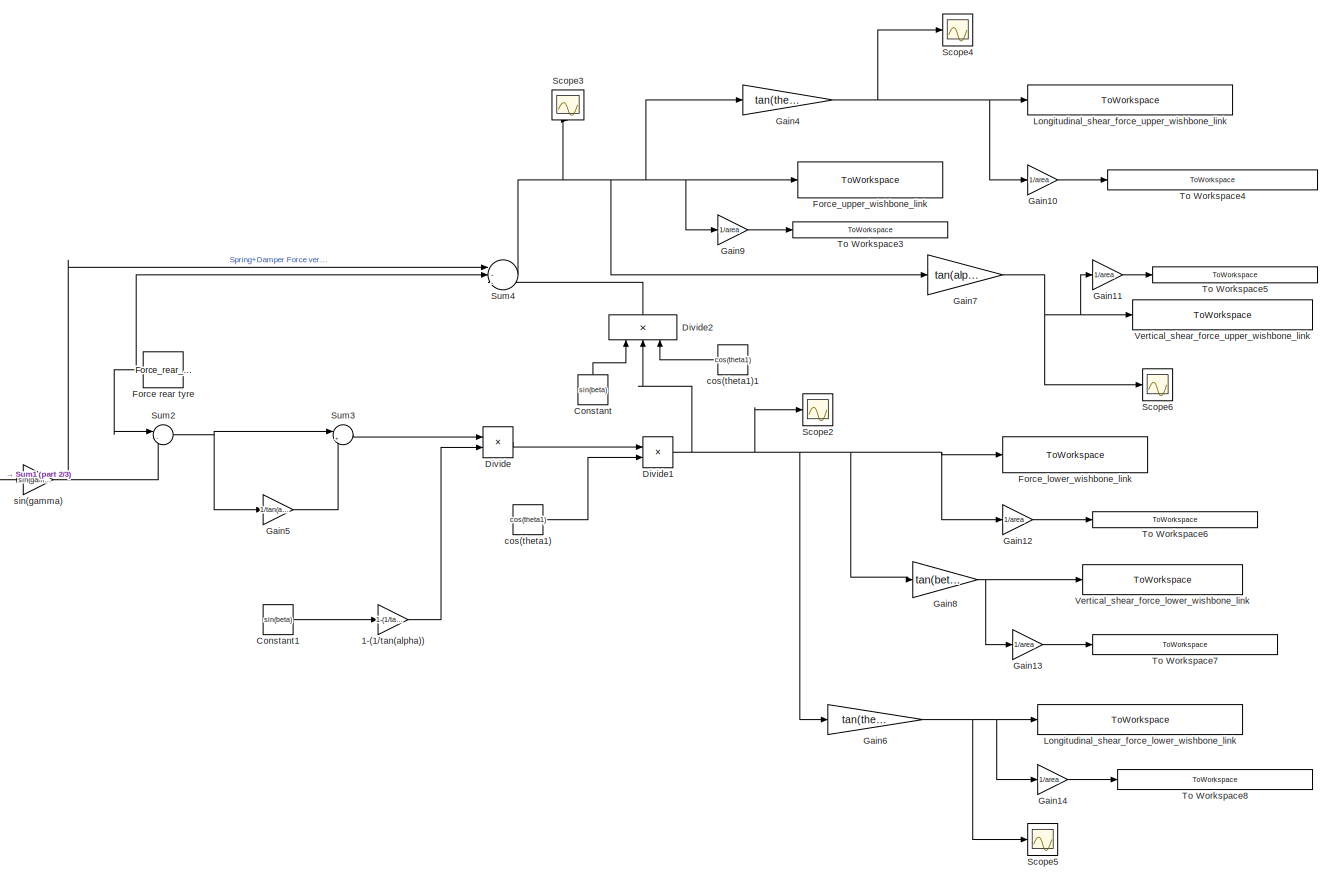
[diagram: root canvas - part 1/3, right side, full height]
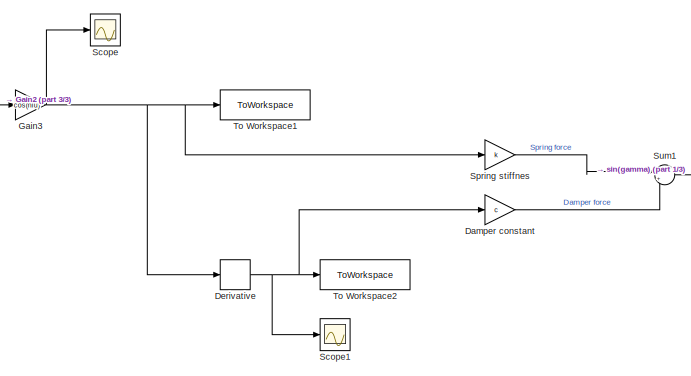
[diagram: root canvas - part 2/3, central region]
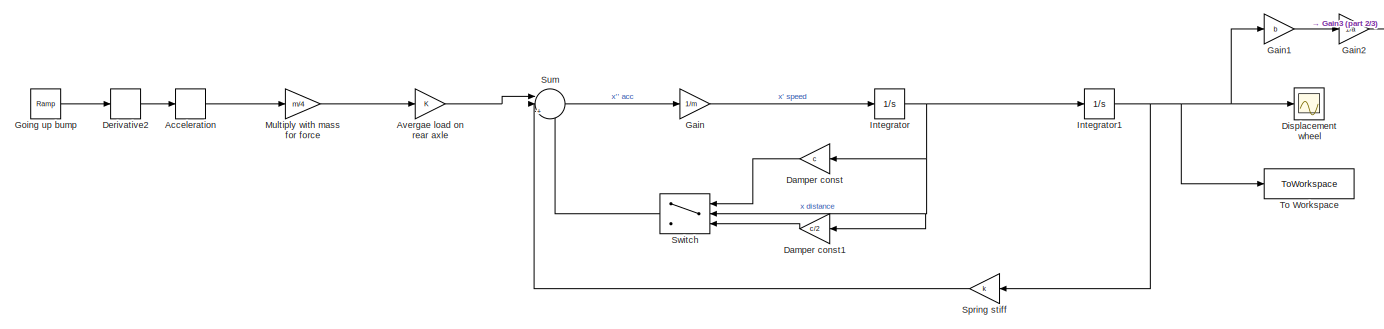
[diagram: root canvas - part 3/3, middle left region]
MODEL slx_c24a3bdfd4ec
KIND model
CONFIG AbsTol = auto
CONFIG EnableMultiTasking = off
CONFIG FixedStep = 0.001
CONFIG MaxStep = auto
CONFIG MinStep = auto
CONFIG RelTol = 1e-3
CONFIG SampleTimeConstraint = Unconstrained
CONFIG SolverName = FixedStepAuto
CONFIG StartTime = 0.0
CONFIG StopTime = 10.0
BLOCK [Gain]  Avergae load on rear axle
BLOCK [Gain] 1-(1//tan(alpha))
  Gain = 1-(1/tan(alpha))
BLOCK [Derivative] Acceleration
BLOCK [Constant] Constant
  NameLocation = right
  Value = sin(beta)
BLOCK [Constant] Constant1
  Value = sin(beta)
BLOCK [Gain] Damper const
  Gain = c
BLOCK [Gain] Damper const1
  Gain = c/2
BLOCK [Gain] Damper constant
  Gain = c
BLOCK [Derivative] Derivative
BLOCK [Derivative] Derivative2
BLOCK [Scope] Displacement wheel
  Floating = off
  NumInputPorts = 1
  Ports = [1]
  ScopeSpecificationString = Simulink.scopes.TimeScopeBlockCfg('CurrentConfiguration', extmgr.ConfigurationSet(extmgr.Configuration('Core','General UI',true),extmgr.Configuration('Core','Source UI',true),extmgr.Configuration('Sources','WiredSimulink',true),extmgr.Configuration('Visuals','Time Domain',true,'SerializedDisplays',{struct('MinYLimReal','-0.08939','MaxYLimReal','0.10719','YLabelReal','','MinYLimMag','0.00000','MaxY...<+1383ch>
BLOCK [Product] Divide
  Inputs = */
  Ports = [2, 1]
BLOCK [Product] Divide1
  Inputs = */
  Ports = [2, 1]
BLOCK [Product] Divide2
  Inputs = **/
  NameLocation = right
  Ports = [3, 1]
BLOCK [Constant] Force rear tyre
  Value = Force_rear_tyre
BLOCK [ToWorkspace] Force_lower_wishbone_link
  FixptAsFi = on
  MaxDataPoints = inf
  Ports = [1]
  SampleTime = -1
  VariableName = Force_lower_wishbone_link
BLOCK [ToWorkspace] Force_upper_wishbone_link
  FixptAsFi = on
  MaxDataPoints = inf
  Ports = [1]
  SampleTime = -1
  VariableName = Force_upper_wishbone_link
BLOCK [Gain] Gain
  Gain = 1/m
BLOCK [Gain] Gain1
  Gain = b
BLOCK [Gain] Gain10
  Gain = 1/area
BLOCK [Gain] Gain11
  Gain = 1/area
BLOCK [Gain] Gain12
  Gain = 1/area
BLOCK [Gain] Gain13
  Gain = 1/area
BLOCK [Gain] Gain14
  Gain = 1/area
BLOCK [Gain] Gain2
  Gain = 1/a
BLOCK [Gain] Gain3
  Gain = cos(niu)
BLOCK [Gain] Gain4
  Gain = tan(theta2)
BLOCK [Gain] Gain5
  Gain = 1/tan(alpha)
BLOCK [Gain] Gain6
  Gain = tan(theta1)
BLOCK [Gain] Gain7
  Gain = tan(alpha)
BLOCK [Gain] Gain8
  Gain = tan(beta)
BLOCK [Gain] Gain9
  Gain = 1/area
BLOCK [Reference] Going up bump  REF=simulink/Sources/Ramp
  Ports = [0, 1]
  SourceBlock = simulink/Sources/Ramp
  SourceProductBaseCode = SL
  SourceType = Ramp
BLOCK [Integrator] Integrator
  Ports = [1, 1]
BLOCK [Integrator] Integrator1
  Ports = [1, 1]
BLOCK [ToWorkspace] Longitudinal_shear_force_lower_wishbone_link
  FixptAsFi = on
  MaxDataPoints = inf
  Ports = [1]
  SampleTime = -1
  VariableName = Longitudinal_shear_force_lower_wishbone_link
BLOCK [ToWorkspace] Longitudinal_shear_force_upper_wishbone_link
  FixptAsFi = on
  MaxDataPoints = inf
  Ports = [1]
  SampleTime = -1
  VariableName = Longitudinal_shear_force_upper_wishbone_link
BLOCK [Gain] Multiply with mass for force
  Gain = m/4
BLOCK [Scope] Scope
  Floating = off
  NumInputPorts = 1
  Ports = [1]
  ScopeSpecificationString = Simulink.scopes.TimeScopeBlockCfg('CurrentConfiguration', extmgr.ConfigurationSet(extmgr.Configuration('Core','General UI',true),extmgr.Configuration('Core','Source UI',true),extmgr.Configuration('Sources','WiredSimulink',true,'DataLoggingVariableName','ScopeData1'),extmgr.Configuration('Visuals','Time Domain',true,'SerializedDisplays',{struct('MinYLimReal','-0.01839','MaxYLimReal','0.02205','YLab...<+1364ch>
BLOCK [Scope] Scope1
  Floating = off
  NumInputPorts = 1
  Ports = [1]
  ScopeSpecificationString = Simulink.scopes.TimeScopeBlockCfg('CurrentConfiguration', extmgr.ConfigurationSet(extmgr.Configuration('Core','General UI',true),extmgr.Configuration('Core','Source UI',true),extmgr.Configuration('Sources','WiredSimulink',true,'DataLoggingVariableName','ScopeData2'),extmgr.Configuration('Visuals','Time Domain',true,'SerializedDisplays',{struct('MinYLimReal','-0.12086','MaxYLimReal','0.15516','YLab...<+1369ch>
BLOCK [Scope] Scope2
  Floating = off
  NumInputPorts = 1
  Ports = [1]
  ScopeSpecificationString = Simulink.scopes.TimeScopeBlockCfg('CurrentConfiguration', extmgr.ConfigurationSet(extmgr.Configuration('Core','General UI',true),extmgr.Configuration('Core','Source UI',true),extmgr.Configuration('Sources','WiredSimulink',true,'DataLoggingVariableName','ScopeData3'),extmgr.Configuration('Visuals','Time Domain',true,'SerializedDisplays',{struct('MinYLimReal','-2995.14632','MaxYLimReal','-1871.77937...<+1390ch>
BLOCK [Scope] Scope3
  Floating = off
  NameLocation = right
  NumInputPorts = 1
  Ports = [1]
  ScopeSpecificationString = Simulink.scopes.TimeScopeBlockCfg('CurrentConfiguration', extmgr.ConfigurationSet(extmgr.Configuration('Core','General UI',true),extmgr.Configuration('Core','Source UI',true),extmgr.Configuration('Sources','WiredSimulink',true,'DataLoggingVariableName','ScopeData4'),extmgr.Configuration('Visuals','Time Domain',true,'SerializedDisplays',{struct('MinYLimReal','3476.1826','MaxYLimReal','5562.44806','...<+1381ch>
BLOCK [Scope] Scope4
  Floating = off
  NumInputPorts = 1
  Ports = [1]
  ScopeSpecificationString = Simulink.scopes.TimeScopeBlockCfg('CurrentConfiguration', extmgr.ConfigurationSet(extmgr.Configuration('Core','General UI',true),extmgr.Configuration('Core','Source UI',true),extmgr.Configuration('Sources','WiredSimulink',true,'DataLoggingVariableName','ScopeData5'),extmgr.Configuration('Visuals','Time Domain',true),extmgr.Configuration('Tools','Plot Navigation',true),extmgr.Configuration('Tools',...<+40ch>
BLOCK [Scope] Scope5
  Floating = off
  NumInputPorts = 1
  Ports = [1]
  ScopeSpecificationString = Simulink.scopes.TimeScopeBlockCfg('CurrentConfiguration', extmgr.ConfigurationSet(extmgr.Configuration('Core','General UI',true),extmgr.Configuration('Core','Source UI',true),extmgr.Configuration('Sources','WiredSimulink',true,'DataLoggingVariableName','ScopeData6'),extmgr.Configuration('Visuals','Time Domain',true,'SerializedDisplays',{struct('MinYLimReal','-6700.62438','MaxYLimReal','-4187.47171...<+1388ch>
BLOCK [Scope] Scope6
  Floating = off
  NumInputPorts = 1
  Ports = [1]
  ScopeSpecificationString = Simulink.scopes.TimeScopeBlockCfg('CurrentConfiguration', extmgr.ConfigurationSet(extmgr.Configuration('Core','General UI',true),extmgr.Configuration('Core','Source UI',true),extmgr.Configuration('Sources','WiredSimulink',true,'DataLoggingVariableName','ScopeData1'),extmgr.Configuration('Visuals','Time Domain',true),extmgr.Configuration('Tools','Plot Navigation',true),extmgr.Configuration('Tools',...<+40ch>
BLOCK [Gain] Spring stiff
  Gain = k
BLOCK [Gain] Spring stiffnes
  Gain = k
BLOCK [Sum] Sum
  Inputs = ||+--
  Ports = [3, 1]
BLOCK [Sum] Sum1
  Inputs = |++
  Ports = [2, 1]
BLOCK [Sum] Sum2
  Inputs = |--
  Ports = [2, 1]
BLOCK [Sum] Sum3
  Inputs = |+-
  Ports = [2, 1]
BLOCK [Sum] Sum4
  Inputs = |---
  Ports = [3, 1]
BLOCK [Switch] Switch
  Criteria = u2 > Threshold
  InputSameDT = off
  SaturateOnIntegerOverflow = off
BLOCK [ToWorkspace] To Workspace
  FixptAsFi = on
  MaxDataPoints = inf
  Ports = [1]
  SampleTime = -1
  VariableName = disp_wheel
BLOCK [ToWorkspace] To Workspace1
  FixptAsFi = on
  MaxDataPoints = inf
  Ports = [1]
  SampleTime = -1
  VariableName = disp_sus
BLOCK [ToWorkspace] To Workspace2
  FixptAsFi = on
  MaxDataPoints = inf
  Ports = [1]
  SampleTime = -1
  VariableName = velocity_sus
BLOCK [ToWorkspace] To Workspace3
  FixptAsFi = on
  MaxDataPoints = inf
  Ports = [1]
  SampleTime = -1
  VariableName = Average_normal_stress_rear_upper_link
BLOCK [ToWorkspace] To Workspace4
  FixptAsFi = on
  MaxDataPoints = inf
  Ports = [1]
  SampleTime = -1
  VariableName = Average_longitudinal_shear_stress_rear_upper_link
BLOCK [ToWorkspace] To Workspace5
  FixptAsFi = on
  MaxDataPoints = inf
  Ports = [1]
  SampleTime = -1
  VariableName = Average_vertical_shear_stress_upper_link
BLOCK [ToWorkspace] To Workspace6
  FixptAsFi = on
  MaxDataPoints = inf
  Ports = [1]
  SampleTime = -1
  VariableName = Average_normal_stress_rear_lower_link
BLOCK [ToWorkspace] To Workspace7
  FixptAsFi = on
  MaxDataPoints = inf
  Ports = [1]
  SampleTime = -1
  VariableName = Average_vertical_shear_stress_rear_lower_link
BLOCK [ToWorkspace] To Workspace8
  FixptAsFi = on
  MaxDataPoints = inf
  Ports = [1]
  SampleTime = -1
  VariableName = Average_longitudinal_shear_stress_rear_lower_link
BLOCK [ToWorkspace] Vertical_shear_force_lower_wishbone_link
  FixptAsFi = on
  MaxDataPoints = inf
  Ports = [1]
  SampleTime = -1
  VariableName = Vertical_shear_force_lower_wishbone_link
BLOCK [ToWorkspace] Vertical_shear_force_upper_wishbone_link
  FixptAsFi = on
  MaxDataPoints = inf
  Ports = [1]
  SampleTime = -1
  VariableName = Vertical_shear_force_upper_wishbone_link
BLOCK [Constant] cos(theta1)
  Value = cos(theta1)
BLOCK [Constant] cos(theta1)1
  NameLocation = top
  Value = cos(theta1)
BLOCK [Gain] sin(gamma)
  Gain = sin(gamma)
LINE  Avergae load on rear axle:1 -> Sum:1
LINE 1-(1//tan(alpha)):1 -> Divide:2
LINE Acceleration:1 -> Multiply with mass for force:1
LINE Constant1:1 -> 1-(1//tan(alpha)):1
LINE Constant:1 -> Divide2:1
LINE Damper const1:1 -> Switch:3
LINE Damper const:1 -> Switch:1
LINE Damper constant:1 -> Sum1:2
LINE Derivative2:1 -> Acceleration:1
NET Derivative:1 -> Damper constant:1, Scope1:1, To Workspace2:1
NET Divide1:1 -> Divide2:2, Force_lower_wishbone_link:1, Gain12:1, Gain6:1, Gain8:1, Scope2:1
LINE Divide2:1 -> Sum4:3
LINE Divide:1 -> Divide1:1
NET Force rear tyre:1 -> Sum2:1, Sum4:2
LINE Gain10:1 -> To Workspace4:1
LINE Gain11:1 -> To Workspace5:1
LINE Gain12:1 -> To Workspace6:1
LINE Gain13:1 -> To Workspace7:1
LINE Gain14:1 -> To Workspace8:1
LINE Gain1:1 -> Gain2:1
LINE Gain2:1 -> Gain3:1
NET Gain3:1 -> Derivative:1, Scope:1, Spring stiffnes:1, To Workspace1:1
NET Gain4:1 -> Gain10:1, Longitudinal_shear_force_upper_wishbone_link:1, Scope4:1
LINE Gain5:1 -> Sum3:2
NET Gain6:1 -> Gain14:1, Longitudinal_shear_force_lower_wishbone_link:1, Scope5:1
NET Gain7:1 -> Gain11:1, Scope6:1, Vertical_shear_force_upper_wishbone_link:1
NET Gain8:1 -> Gain13:1, Vertical_shear_force_lower_wishbone_link:1
LINE Gain9:1 -> To Workspace3:1
LINE Gain:1 -> Integrator:1
LINE Going up bump:1 -> Derivative2:1
NET Integrator1:1 -> Displacement wheel:1, Gain1:1, Spring stiff:1, To Workspace:1
NET Integrator:1 -> Damper const1:1, Damper const:1, Integrator1:1, Switch:2
LINE Multiply with mass for force:1 ->  Avergae load on rear axle:1
LINE Spring stiff:1 -> Sum:2
LINE Spring stiffnes:1 -> Sum1:1
LINE Sum1:1 -> sin(gamma):1
NET Sum2:1 -> Gain5:1, Sum3:1
LINE Sum3:1 -> Divide:1
NET Sum4:1 -> Force_upper_wishbone_link:1, Gain4:1, Gain7:1, Gain9:1, Scope3:1
LINE Sum:1 -> Gain:1
LINE Switch:1 -> Sum:3
LINE cos(theta1)1:1 -> Divide2:3
LINE cos(theta1):1 -> Divide1:2
NET sin(gamma):1 -> Sum2:2, Sum4:1
note: NET lines group one-source signal fan-out (src -> all destinations, sorted); 1:1 wires keep LINE
